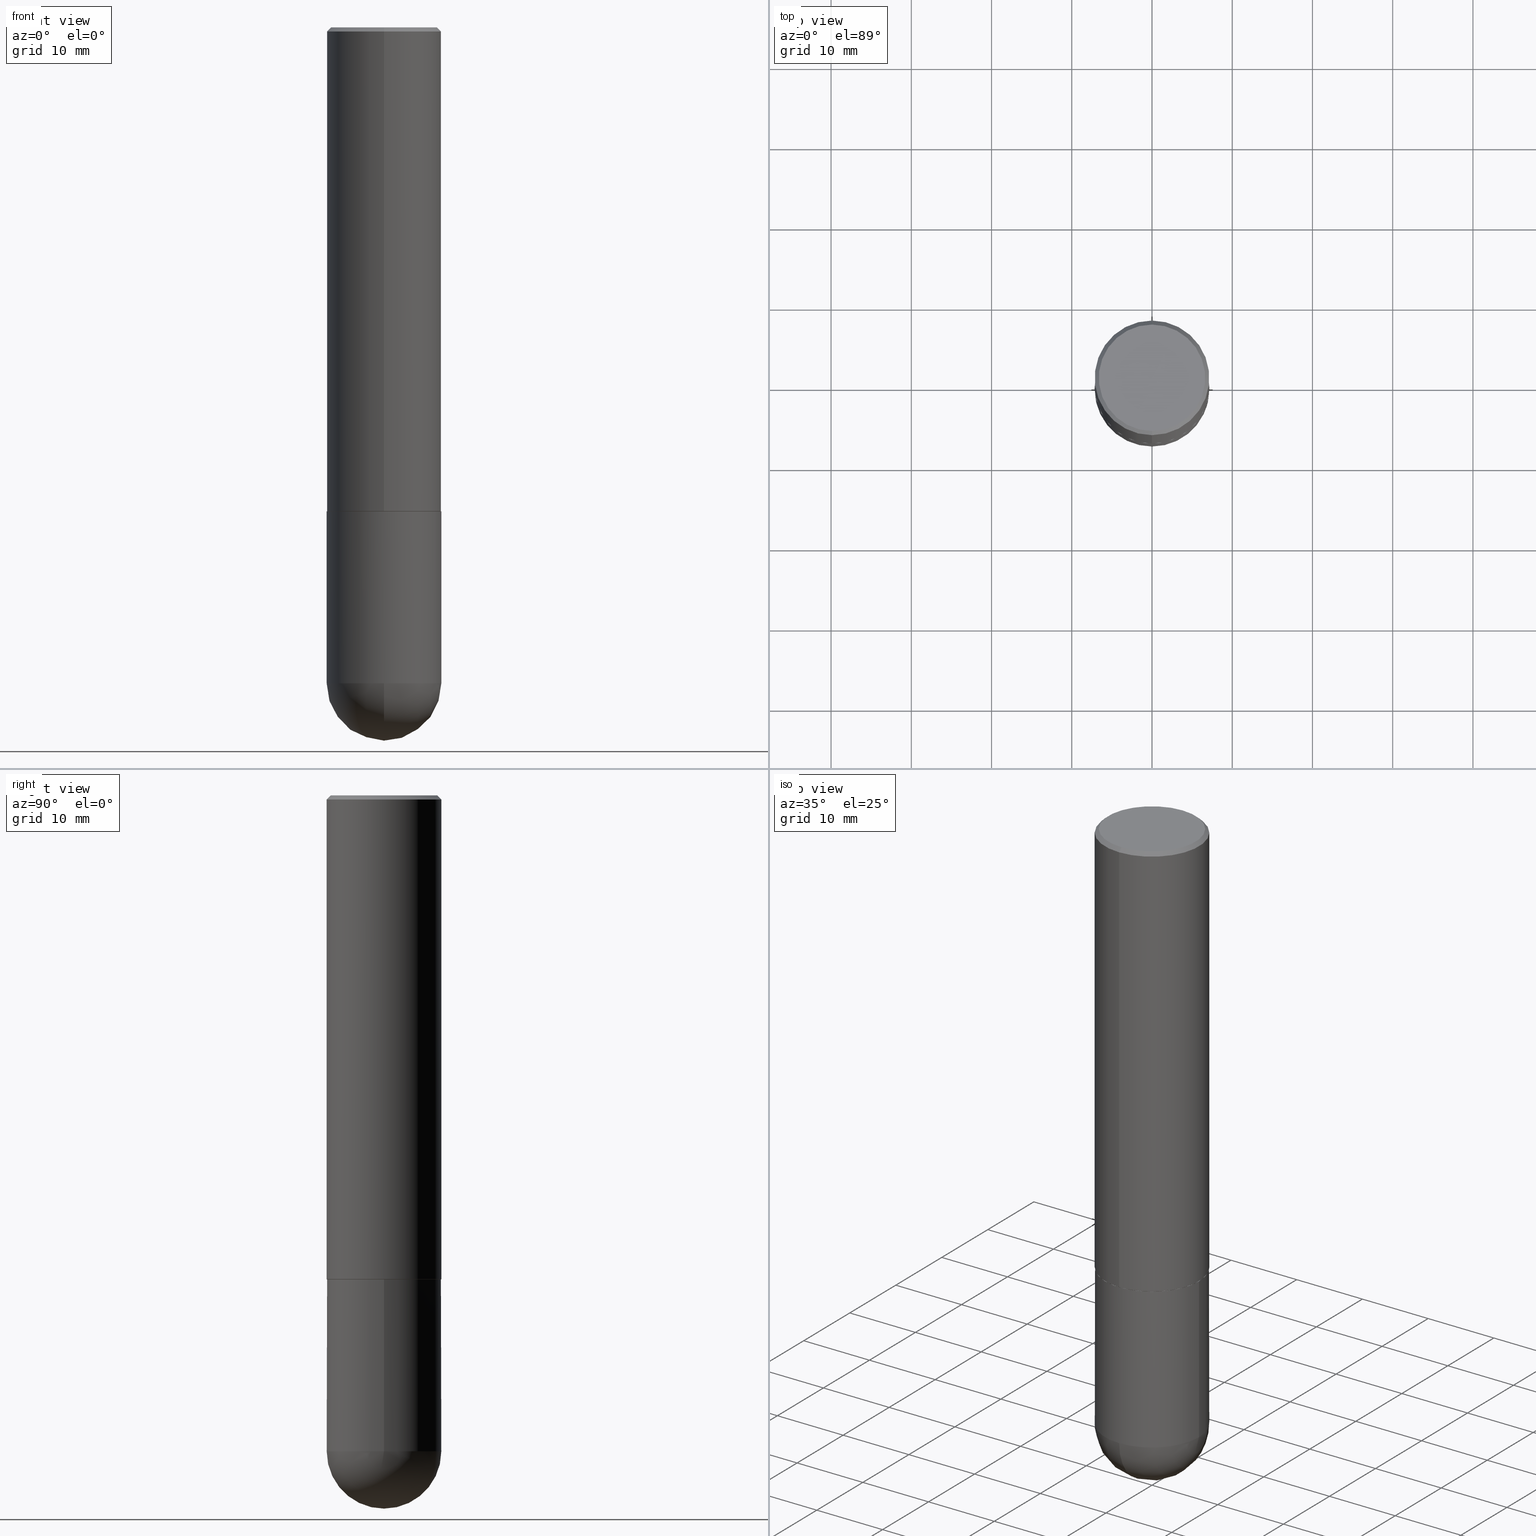
[diagram: canonical four-view strip — front | top / right | iso, engineering-drawing reading convention]
A machine part, canonical four-view strip (front | top / right | iso — engineering-drawing reading convention). The complete STEP part file that produces these views, byte-faithful:
ISO-10303-21;
HEADER;
FILE_DESCRIPTION (( 'STEP AP203' ),
    '1' );
FILE_NAME ('30593.STEP',
    '2024-02-21T16:41:23',
    ( '' ),
    ( '' ),
    'SwSTEP 2.0',
    'SolidWorks 2023',
    '' );
FILE_SCHEMA (( 'CONFIG_CONTROL_DESIGN' ));
ENDSEC;

DATA;
#1 = LINE ( 'NONE', #261, #167 ) ;
#2 = CIRCLE ( 'NONE', #116, 0.2612499999999999267 ) ;
#3 = VECTOR ( 'NONE', #8, 39.37007874015748143 ) ;
#4 = EDGE_LOOP ( 'NONE', ( #78, #129, #5, #263 ) ) ;
#5 = ORIENTED_EDGE ( 'NONE', *, *, #345, .T. ) ;
#6 = ADVANCED_FACE ( 'NONE', ( #288 ), #382, .T. ) ;
#7 = ORIENTED_EDGE ( 'NONE', *, *, #64, .F. ) ;
#8 = DIRECTION ( 'NONE',  ( -2.445561105913636168E-29, 3.491349160378560520E-15, 1.000000000000000000 ) ) ;
#9 = CARTESIAN_POINT ( 'NONE',  ( -1.929515061873242463E-15, -0.2812500000000000555, -0.01999999999999908101 ) ) ;
#10 = EDGE_LOOP ( 'NONE', ( #230, #351, #104, #346 ) ) ;
#11 = COORDINATED_UNIVERSAL_TIME_OFFSET ( 5, 0, .BEHIND. ) ;
#12 = APPROVAL_STATUS ( 'not_yet_approved' ) ;
#13 = VECTOR ( 'NONE', #126, 39.37007874015748143 ) ;
#14 = ORIENTED_EDGE ( 'NONE', *, *, #325, .F. ) ;
#15 = LENGTH_MEASURE_WITH_UNIT ( LENGTH_MEASURE( 0.02539999999999999897 ), #74 );
#16 = VERTEX_POINT ( 'NONE', #9 ) ;
#17 = VERTEX_POINT ( 'NONE', #57 ) ;
#18 = PRODUCT_DEFINITION ( 'UNKNOWN', '', #59, #378 ) ;
#19 = AXIS2_PLACEMENT_3D ( 'NONE', #284, #155, #380 ) ;
#20 = VECTOR ( 'NONE', #40, 39.37007874015748143 ) ;
#21 = CALENDAR_DATE ( 2024, 21, 2 ) ;
#22 = APPROVAL_DATE_TIME ( #31, #245 ) ;
#23 = DIRECTION ( 'NONE',  ( -2.445561105913635888E-29, 3.491349160378560520E-15, 1.000000000000000000 ) ) ;
#24 = DIRECTION ( 'NONE',  ( -6.982962677686265922E-15, -1.000000000000000000, 3.899158599342391639E-15 ) ) ;
#25 = CARTESIAN_POINT ( 'NONE',  ( 1.824298999545536310E-15, 0.2612499999999999267, -8.929239277553832707E-16 ) ) ;
#26 = CIRCLE ( 'NONE', #281, 0.2812500000000003331 ) ;
#27 = AXIS2_PLACEMENT_3D ( 'NONE', #121, #207, #307 ) ;
#28 = DIRECTION ( 'NONE',  ( -2.445468806185136877E-29, 3.491481338843145188E-15, 1.000000000000000000 ) ) ;
#29 = UNCERTAINTY_MEASURE_WITH_UNIT (LENGTH_MEASURE( 1.000000000000000082E-05 ), #231, 'distance_accuracy_value', 'NONE');
#30 = DIRECTION ( 'NONE',  ( 5.024295867788490741E-15, 0.7071067811866103003, 0.7071067811864847341 ) ) ;
#31 = DATE_AND_TIME ( #368, #42 ) ;
#32 = FACE_OUTER_BOUND ( 'NONE', #237, .T. ) ;
#33 = AXIS2_PLACEMENT_3D ( 'NONE', #257, #37, #153 ) ;
#34 = CC_DESIGN_SECURITY_CLASSIFICATION ( #387, ( #59 ) ) ;
#35 = DIRECTION ( 'NONE',  ( -6.982962677686265133E-15, -1.000000000000000000, 3.885294924322504533E-15 ) ) ;
#36 =( NAMED_UNIT ( * ) SI_UNIT ( $, .STERADIAN. ) SOLID_ANGLE_UNIT ( ) );
#37 = DIRECTION ( 'NONE',  ( -2.445561105913635328E-29, 3.491349160378560520E-15, 1.000000000000000000 ) ) ;
#38 = CARTESIAN_POINT ( 'NONE',  ( 0.000000000000000000, 0.000000000000000000, 0.000000000000000000 ) ) ;
#39 = CC_DESIGN_PERSON_AND_ORGANIZATION_ASSIGNMENT ( #109, #232, ( #18 ) ) ;
#40 = DIRECTION ( 'NONE',  ( 4.937700262164542520E-15, 0.7071067811865443531, -0.7071067811865506814 ) ) ;
#41 = EDGE_CURVE ( 'NONE', #16, #138, #305, .T. ) ;
#42 = LOCAL_TIME ( 11, 41, 23.00000000000000000, #336 ) ;
#43 = CARTESIAN_POINT ( 'NONE',  ( -1.963958253099263301E-15, -0.2812500000000001110, 9.819419513564705654E-16 ) ) ;
#44 = DIRECTION ( 'NONE',  ( -6.982962677686266711E-15, -1.000000000000000000, 3.491349160378560520E-15 ) ) ;
#45 = ORIENTED_EDGE ( 'NONE', *, *, #260, .T. ) ;
#46 = DIRECTION ( 'NONE',  ( -2.445561105913635888E-29, 3.491349160378560520E-15, 1.000000000000000000 ) ) ;
#47 = PERSON_AND_ORGANIZATION ( #158, #362 ) ;
#48 = ORIENTED_EDGE ( 'NONE', *, *, #120, .F. ) ;
#49 = CALENDAR_DATE ( 2024, 21, 2 ) ;
#50 = CIRCLE ( 'NONE', #407, 0.2812500000000002220 ) ;
#51 = CONICAL_SURFACE ( 'NONE', #125, 0.2812500000000000000, 0.7853981633974472798 ) ;
#52 = EDGE_LOOP ( 'NONE', ( #199, #389, #393, #186 ) ) ;
#53 = DIRECTION ( 'NONE',  ( 6.982962677686265133E-15, 1.000000000000000000, 0.000000000000000000 ) ) ;
#54 = ADVANCED_FACE ( 'NONE', ( #364 ), #401, .T. ) ;
#55 = DIRECTION ( 'NONE',  ( 1.000000000000000000, -6.982962677686266711E-15, 4.876176775795935232E-29 ) ) ;
#56 = CIRCLE ( 'NONE', #103, 0.2812500000000000000 ) ;
#57 = CARTESIAN_POINT ( 'NONE',  ( 1.894128626322399609E-15, 0.2612499999999999267, -8.737328873618678649E-16 ) ) ;
#58 = DIRECTION ( 'NONE',  ( 2.445561105913635888E-29, -3.491349160378560520E-15, -1.000000000000000000 ) ) ;
#59 = PRODUCT_DEFINITION_FORMATION_WITH_SPECIFIED_SOURCE ( 'ANY', '', #239, .NOT_KNOWN. ) ;
#60 = DIRECTION ( 'NONE',  ( -2.445561105913635888E-29, 3.491349160378560520E-15, 1.000000000000000000 ) ) ;
#61 = VECTOR ( 'NONE', #28, 39.37007874015748143 ) ;
#62 = LINE ( 'NONE', #100, #395 ) ;
#63 = CALENDAR_DATE ( 2024, 21, 2 ) ;
#64 = EDGE_CURVE ( 'NONE', #138, #16, #369, .T. ) ;
#65 = ADVANCED_FACE ( 'NONE', ( #308 ), #373, .T. ) ;
#66 = ORIENTED_EDGE ( 'NONE', *, *, #68, .T. ) ;
#67 = PERSON_AND_ORGANIZATION_ROLE ( 'classification_officer' ) ;
#68 = EDGE_CURVE ( 'NONE', #291, #356, #86, .T. ) ;
#69 = DIRECTION ( 'NONE',  ( -6.982962677686265922E-15, -1.000000000000000000, 3.899158599342391639E-15 ) ) ;
#70 = ORIENTED_EDGE ( 'NONE', *, *, #366, .T. ) ;
#71 = CC_DESIGN_PERSON_AND_ORGANIZATION_ASSIGNMENT ( #102, #76, ( #59 ) ) ;
#72 = DIRECTION ( 'NONE',  ( 2.438088387897960049E-29, -3.491481338843145188E-15, -1.000000000000000000 ) ) ;
#73 = ORIENTED_EDGE ( 'NONE', *, *, #187, .T. ) ;
#74 =( LENGTH_UNIT ( ) NAMED_UNIT ( * ) SI_UNIT ( $, .METRE. ) );
#75 = ORIENTED_EDGE ( 'NONE', *, *, #159, .F. ) ;
#76 = PERSON_AND_ORGANIZATION_ROLE ( 'creator' ) ;
#77 = APPROVAL_STATUS ( 'not_yet_approved' ) ;
#78 = ORIENTED_EDGE ( 'NONE', *, *, #169, .F. ) ;
#79 = AXIS2_PLACEMENT_3D ( 'NONE', #114, #148, #55 ) ;
#80 = CC_DESIGN_APPROVAL ( #376, ( #387 ) ) ;
#81 = DIRECTION ( 'NONE',  ( 6.982962677686266711E-15, 1.000000000000000000, -3.490694658571002804E-15 ) ) ;
#82 = ORIENTED_EDGE ( 'NONE', *, *, #403, .T. ) ;
#83 = ADVANCED_FACE ( 'NONE', ( #206 ), #396, .T. ) ;
#84 = AXIS2_PLACEMENT_3D ( 'NONE', #332, #248, #24 ) ;
#85 = CIRCLE ( 'NONE', #150, 0.2812500000000003331 ) ;
#86 = LINE ( 'NONE', #335, #61 ) ;
#87 = PLANE ( 'NONE',  #241 ) ;
#88 = CARTESIAN_POINT ( 'NONE',  ( -9.386572393679780245E-46, 1.340052455293824301E-31, 3.838208078703090415E-17 ) ) ;
#89 = CARTESIAN_POINT ( 'NONE',  ( 7.540232941994521053E-29, -1.171238792754142562E-14, -3.218749999999999556 ) ) ;
#90 = APPROVAL_ROLE ( '' ) ;
#91 = ADVANCED_FACE ( 'NONE', ( #173 ), #313, .F. ) ;
#92 = DIRECTION ( 'NONE',  ( -2.445468806185136597E-29, 3.491481338843145583E-15, 1.000000000000000000 ) ) ;
#93 = DIRECTION ( 'NONE',  ( 1.000000000000000000, -6.982962677686268288E-15, 0.000000000000000000 ) ) ;
#94 = CIRCLE ( 'NONE', #287, 0.2812500000000000555 ) ;
#95 = ADVANCED_FACE ( 'NONE', ( #32 ), #338, .T. ) ;
#96 = ORIENTED_EDGE ( 'NONE', *, *, #366, .F. ) ;
#97 = ADVANCED_FACE ( 'NONE', ( #214 ), #340, .T. ) ;
#98 = CARTESIAN_POINT ( 'NONE',  ( 7.871352719908407300E-29, -1.123820555940137375E-14, -3.218749999999999556 ) ) ;
#99 = CARTESIAN_POINT ( 'NONE',  ( -0.2812500000000000000, -7.766835425251639371E-15, -2.374999999999999556 ) ) ;
#100 = CARTESIAN_POINT ( 'NONE',  ( -1.956975290421518122E-15, -0.2802500000000083258, -2.374999999999998668 ) ) ;
#101 = EDGE_CURVE ( 'NONE', #291, #226, #185, .T. ) ;
#102 = PERSON_AND_ORGANIZATION ( #158, #362 ) ;
#103 = AXIS2_PLACEMENT_3D ( 'NONE', #397, #191, #132 ) ;
#104 = ORIENTED_EDGE ( 'NONE', *, *, #41, .F. ) ;
#105 = DIRECTION ( 'NONE',  ( 1.000000000000000000, 0.000000000000000000, 0.000000000000000000 ) ) ;
#106 = ORIENTED_EDGE ( 'NONE', *, *, #310, .T. ) ;
#107 = VERTEX_POINT ( 'NONE', #279 ) ;
#108 = ORIENTED_EDGE ( 'NONE', *, *, #120, .T. ) ;
#109 = PERSON_AND_ORGANIZATION ( #158, #362 ) ;
#110 = CARTESIAN_POINT ( 'NONE',  ( 4.891122211827287681E-31, -6.982698320757142044E-17, -0.02000000000000006287 ) ) ;
#111 = ORIENTED_EDGE ( 'NONE', *, *, #260, .F. ) ;
#112 = ORIENTED_EDGE ( 'NONE', *, *, #219, .T. ) ;
#113 = EDGE_CURVE ( 'NONE', #192, #17, #2, .T. ) ;
#114 = CARTESIAN_POINT ( 'NONE',  ( 0.000000000000000000, 0.000000000000000000, 0.000000000000000000 ) ) ;
#115 = CARTESIAN_POINT ( 'NONE',  ( 5.808207626544884288E-29, -8.291954255899079954E-15, -2.374999999999999556 ) ) ;
#116 = AXIS2_PLACEMENT_3D ( 'NONE', #88, #404, #243 ) ;
#117 = DIRECTION ( 'NONE',  ( -6.982962677686265922E-15, -1.000000000000000000, 3.899158599342391639E-15 ) ) ;
#118 = DIRECTION ( 'NONE',  ( 1.000000000000000000, -6.982962677686268288E-15, 0.000000000000000000 ) ) ;
#119 = DIRECTION ( 'NONE',  ( 1.000000000000000000, -6.982962677686266711E-15, 4.876176775795935232E-29 ) ) ;
#120 = EDGE_CURVE ( 'NONE', #348, #156, #367, .T. ) ;
#121 = CARTESIAN_POINT ( 'NONE',  ( 5.807988414689698296E-29, -8.292268179752468540E-15, -2.374999999999999556 ) ) ;
#122 = DIRECTION ( 'NONE',  ( -1.000000000000000000, 6.982962677686265922E-15, -4.883557194083112901E-29 ) ) ;
#123 = DIRECTION ( 'NONE',  ( -2.445468806185136597E-29, 3.491481338843145583E-15, 1.000000000000000000 ) ) ;
#124 = DIRECTION ( 'NONE',  ( -2.445468806185136877E-29, 3.491481338843145188E-15, 1.000000000000000000 ) ) ;
#125 = AXIS2_PLACEMENT_3D ( 'NONE', #211, #58, #309 ) ;
#126 = DIRECTION ( 'NONE',  ( -2.445561105913636168E-29, 3.491349160378560520E-15, 1.000000000000000000 ) ) ;
#127 = MECHANICAL_CONTEXT ( 'NONE', #285, 'mechanical' ) ;
#128 = CARTESIAN_POINT ( 'NONE',  ( 1.998401444325282167E-15, 0.2812500000000001110, -9.819419513564705654E-16 ) ) ;
#129 = ORIENTED_EDGE ( 'NONE', *, *, #149, .F. ) ;
#130 = ORIENTED_EDGE ( 'NONE', *, *, #149, .T. ) ;
#131 = EDGE_CURVE ( 'NONE', #322, #156, #50, .T. ) ;
#132 = DIRECTION ( 'NONE',  ( 1.000000000000000000, -6.982962677686266711E-15, 0.000000000000000000 ) ) ;
#133 = EDGE_LOOP ( 'NONE', ( #381, #66, #342, #203, #82 ) ) ;
#134 = CIRCLE ( 'NONE', #277, 0.2812500000000000555 ) ;
#135 = CIRCLE ( 'NONE', #27, 0.2812500000000000000 ) ;
#136 = ORIENTED_EDGE ( 'NONE', *, *, #131, .F. ) ;
#137 = EDGE_LOOP ( 'NONE', ( #112, #108, #136, #14 ) ) ;
#138 = VERTEX_POINT ( 'NONE', #311 ) ;
#139 = PERSON_AND_ORGANIZATION ( #158, #362 ) ;
#140 = EDGE_LOOP ( 'NONE', ( #160, #45, #259, #75 ) ) ;
#141 = DIRECTION ( 'NONE',  ( -1.000000000000000000, 6.982962677686265922E-15, -4.876176775795935793E-29 ) ) ;
#142 = DATE_TIME_ROLE ( 'classification_date' ) ;
#143 = CC_DESIGN_DATE_AND_TIME_ASSIGNMENT ( #144, #359, ( #18 ) ) ;
#144 = DATE_AND_TIME ( #201, #198 ) ;
#145 = CIRCLE ( 'NONE', #400, 0.2812500000000000555 ) ;
#146 = DIRECTION ( 'NONE',  ( -2.445468806185136597E-29, 3.491481338843145583E-15, 1.000000000000000000 ) ) ;
#147 = DIRECTION ( 'NONE',  ( 2.445561105913635328E-29, -3.491349160378560520E-15, -1.000000000000000000 ) ) ;
#148 = DIRECTION ( 'NONE',  ( -2.445468806185136597E-29, 3.491481338843145583E-15, 1.000000000000000000 ) ) ;
#149 = EDGE_CURVE ( 'NONE', #17, #192, #235, .T. ) ;
#150 = AXIS2_PLACEMENT_3D ( 'NONE', #229, #270, #168 ) ;
#151 = CC_DESIGN_PERSON_AND_ORGANIZATION_ASSIGNMENT ( #184, #244, ( #239 ) ) ;
#152 = LINE ( 'NONE', #128, #13 ) ;
#153 = DIRECTION ( 'NONE',  ( -6.982962677686265922E-15, -1.000000000000000000, 3.491349160378560520E-15 ) ) ;
#154 = CARTESIAN_POINT ( 'NONE',  ( -0.2812500000000000555, -7.766835425251640949E-15, -3.218749999999999556 ) ) ;
#155 = DIRECTION ( 'NONE',  ( -2.445561105913635888E-29, 3.491349160378560520E-15, 1.000000000000000000 ) ) ;
#156 = VERTEX_POINT ( 'NONE', #411 ) ;
#157 = DIRECTION ( 'NONE',  ( -6.982962677686265133E-15, -1.000000000000000000, 3.885294924322504533E-15 ) ) ;
#158 = PERSON ( 'UNSPECIFIED', 'UNSPECIFIED', 'UNSPECIFIED', ('UNSPECIFIED'), ('UNSPECIFIED'), ('UNSPECIFIED') ) ;
#159 = EDGE_CURVE ( 'NONE', #165, #291, #134, .T. ) ;
#160 = ORIENTED_EDGE ( 'NONE', *, *, #187, .F. ) ;
#161 = APPROVAL_ROLE ( '' ) ;
#162 = CARTESIAN_POINT ( 'NONE',  ( 8.240046819675677659E-29, -1.267714545847805119E-14, -3.500000000000000000 ) ) ;
#163 = EDGE_LOOP ( 'NONE', ( #390, #204 ) ) ;
#164 = APPROVAL_STATUS ( 'not_yet_approved' ) ;
#165 = VERTEX_POINT ( 'NONE', #372 ) ;
#166 = CARTESIAN_POINT ( 'NONE',  ( 1.963958253099262907E-15, 0.2812499999999999445, -0.02000000000000104472 ) ) ;
#167 = VECTOR ( 'NONE', #124, 39.37007874015748143 ) ;
#168 = DIRECTION ( 'NONE',  ( -7.105427357601001859E-15, -1.000000000000000000, 0.000000000000000000 ) ) ;
#169 = EDGE_CURVE ( 'NONE', #192, #16, #370, .T. ) ;
#170 = DATE_AND_TIME ( #21, #209 ) ;
#171 = ORIENTED_EDGE ( 'NONE', *, *, #325, .T. ) ;
#172 = CARTESIAN_POINT ( 'NONE',  ( 1.963958253099320494E-15, 0.2812499999999917288, -2.375000000000000888 ) ) ;
#173 = FACE_OUTER_BOUND ( 'NONE', #189, .T. ) ;
#174 = APPROVAL_PERSON_ORGANIZATION ( #262, #299, #161 ) ;
#175 = EDGE_CURVE ( 'NONE', #348, #298, #225, .T. ) ;
#176 = DIRECTION ( 'NONE',  ( -1.000000000000000000, 6.982962677686265922E-15, -4.883557194083112901E-29 ) ) ;
#177 = FACE_OUTER_BOUND ( 'NONE', #140, .T. ) ;
#178 = AXIS2_PLACEMENT_3D ( 'NONE', #321, #46, #157 ) ;
#179 = SPHERICAL_SURFACE ( 'NONE', #212, 0.2812500000000003331 ) ;
#180 = ADVANCED_FACE ( 'NONE', ( #388 ), #246, .T. ) ;
#181 = EDGE_LOOP ( 'NONE', ( #130, #268 ) ) ;
#182 = COORDINATED_UNIVERSAL_TIME_OFFSET ( 5, 0, .BEHIND. ) ;
#183 = CARTESIAN_POINT ( 'NONE',  ( 7.871352719908407300E-29, -1.123820555940137375E-14, -3.218749999999999556 ) ) ;
#184 = PERSON_AND_ORGANIZATION ( #158, #362 ) ;
#185 = CIRCLE ( 'NONE', #352, 0.2812500000000000555 ) ;
#186 = ORIENTED_EDGE ( 'NONE', *, *, #345, .F. ) ;
#187 = EDGE_CURVE ( 'NONE', #391, #165, #26, .T. ) ;
#188 = CARTESIAN_POINT ( 'NONE',  ( 0.000000000000000000, 0.000000000000000000, 0.000000000000000000 ) ) ;
#189 = EDGE_LOOP ( 'NONE', ( #293, #220 ) ) ;
#190 = LINE ( 'NONE', #166, #20 ) ;
#191 = DIRECTION ( 'NONE',  ( -2.445468806185136597E-29, 3.491481338843145583E-15, 1.000000000000000000 ) ) ;
#192 = VERTEX_POINT ( 'NONE', #275 ) ;
#193 = APPLICATION_PROTOCOL_DEFINITION ( 'international standard', 'config_control_design', 1994, #329 ) ;
#194 = PLANE ( 'NONE',  #402 ) ;
#195 = DIRECTION ( 'NONE',  ( -2.445468806185136597E-29, 3.491481338843145583E-15, 1.000000000000000000 ) ) ;
#196 = VECTOR ( 'NONE', #289, 39.37007874015748143 ) ;
#197 = EDGE_LOOP ( 'NONE', ( #349, #70, #320, #7 ) ) ;
#198 = LOCAL_TIME ( 11, 41, 23.00000000000000000, #276 ) ;
#199 = ORIENTED_EDGE ( 'NONE', *, *, #113, .F. ) ;
#200 = APPROVAL_DATE_TIME ( #297, #376 ) ;
#201 = CALENDAR_DATE ( 2024, 21, 2 ) ;
#202 = CARTESIAN_POINT ( 'NONE',  ( 7.540232941994521053E-29, -1.171238792754142562E-14, -3.218749999999999556 ) ) ;
#203 = ORIENTED_EDGE ( 'NONE', *, *, #337, .F. ) ;
#204 = ORIENTED_EDGE ( 'NONE', *, *, #208, .T. ) ;
#205 = DIRECTION ( 'NONE',  ( -2.445561105913635888E-29, 3.491349160378560520E-15, 1.000000000000000000 ) ) ;
#206 = FACE_OUTER_BOUND ( 'NONE', #394, .T. ) ;
#207 = DIRECTION ( 'NONE',  ( -2.445468806185136597E-29, 3.491481338843145583E-15, 1.000000000000000000 ) ) ;
#208 = EDGE_CURVE ( 'NONE', #356, #107, #56, .T. ) ;
#209 = LOCAL_TIME ( 11, 41, 23.00000000000000000, #182 ) ;
#210 = DIRECTION ( 'NONE',  ( -6.982962677686266711E-15, -1.000000000000000000, 3.491349160378560520E-15 ) ) ;
#211 = CARTESIAN_POINT ( 'NONE',  ( 4.891122211827287681E-31, -6.982698320757142044E-17, -0.02000000000000006287 ) ) ;
#212 = AXIS2_PLACEMENT_3D ( 'NONE', #89, #176, #314 ) ;
#213 = CARTESIAN_POINT ( 'NONE',  ( 1.991296016967738351E-15, 0.2802499999999917280, -2.375000000000000888 ) ) ;
#214 = FACE_OUTER_BOUND ( 'NONE', #300, .T. ) ;
#215 = CARTESIAN_POINT ( 'NONE',  ( 5.808207626544884288E-29, -8.291954255899079954E-15, -2.374999999999999556 ) ) ;
#216 =( NAMED_UNIT ( * ) PLANE_ANGLE_UNIT ( ) SI_UNIT ( $, .RADIAN. ) );
#217 =( GEOMETRIC_REPRESENTATION_CONTEXT ( 3 ) GLOBAL_UNCERTAINTY_ASSIGNED_CONTEXT ( ( #29 ) ) GLOBAL_UNIT_ASSIGNED_CONTEXT ( ( #231, #216, #36 ) ) REPRESENTATION_CONTEXT ( 'NONE', 'WORKASPACE' ) );
#218 = CARTESIAN_POINT ( 'NONE',  ( -1.929515061873242463E-15, -0.2812500000000000555, -0.01999999999999908101 ) ) ;
#219 = EDGE_CURVE ( 'NONE', #298, #348, #266, .T. ) ;
#220 = ORIENTED_EDGE ( 'NONE', *, *, #175, .F. ) ;
#221 = MANIFOLD_SOLID_BREP ( 'Body-Move/Copy2[1]', #328 ) ;
#222 = CARTESIAN_POINT ( 'NONE',  ( 5.808207626544884288E-29, -8.291954255899079954E-15, -2.374999999999999556 ) ) ;
#223 = CC_DESIGN_DATE_AND_TIME_ASSIGNMENT ( #170, #142, ( #387 ) ) ;
#224 = DIMENSIONAL_EXPONENTS ( 1.000000000000000000, 0.000000000000000000, 0.000000000000000000, 0.000000000000000000, 0.000000000000000000, 0.000000000000000000, 0.000000000000000000 ) ;
#225 = CIRCLE ( 'NONE', #361, 0.2802499999999999991 ) ;
#226 = VERTEX_POINT ( 'NONE', #242 ) ;
#227 = AXIS2_PLACEMENT_3D ( 'NONE', #115, #330, #117 ) ;
#228 = VERTEX_POINT ( 'NONE', #333 ) ;
#229 = CARTESIAN_POINT ( 'NONE',  ( 7.540232941994521053E-29, -1.171238792754142562E-14, -3.218749999999999556 ) ) ;
#230 = ORIENTED_EDGE ( 'NONE', *, *, #131, .T. ) ;
#231 =( CONVERSION_BASED_UNIT ( 'INCH', #15 ) LENGTH_UNIT ( ) NAMED_UNIT ( #224 ) );
#232 = PERSON_AND_ORGANIZATION_ROLE ( 'creator' ) ;
#233 = ORIENTED_EDGE ( 'NONE', *, *, #175, .T. ) ;
#234 = PRODUCT_DEFINITION_SHAPE ( 'NONE', 'NONE',  #18 ) ;
#235 = CIRCLE ( 'NONE', #19, 0.2612499999999999267 ) ;
#236 = CIRCLE ( 'NONE', #178, 0.2812500000000002220 ) ;
#237 = EDGE_LOOP ( 'NONE', ( #111, #73, #319, #267 ) ) ;
#238 = SHAPE_DEFINITION_REPRESENTATION ( #234, #357 ) ;
#239 = PRODUCT ( '30593', '30593', '', ( #127 ) ) ;
#240 = ADVANCED_FACE ( 'NONE', ( #363 ), #87, .F. ) ;
#241 = AXIS2_PLACEMENT_3D ( 'NONE', #25, #147, #249 ) ;
#242 = CARTESIAN_POINT ( 'NONE',  ( -1.998401444325206042E-15, -0.2812500000000116573, -3.218749999999998668 ) ) ;
#243 = DIRECTION ( 'NONE',  ( -6.982962677686265133E-15, -1.000000000000000000, 3.491349160378560520E-15 ) ) ;
#244 = PERSON_AND_ORGANIZATION_ROLE ( 'design_owner' ) ;
#245 = APPROVAL ( #12, 'UNSPECIFIED' ) ;
#246 = CONICAL_SURFACE ( 'NONE', #253, 0.2812500000000000000, 0.7853981633974472798 ) ;
#247 = APPROVAL_PERSON_ORGANIZATION ( #303, #376, #398 ) ;
#248 = DIRECTION ( 'NONE',  ( -2.445561105913635888E-29, 3.491349160378560520E-15, 1.000000000000000000 ) ) ;
#249 = DIRECTION ( 'NONE',  ( 6.982962677686265922E-15, 1.000000000000000000, -3.491349160378560520E-15 ) ) ;
#250 = ADVANCED_FACE ( 'NONE', ( #405 ), #51, .T. ) ;
#251 = DIRECTION ( 'NONE',  ( 1.000000000000000000, -6.982962677686268288E-15, 0.000000000000000000 ) ) ;
#252 = CARTESIAN_POINT ( 'NONE',  ( -1.956975290421518122E-15, -0.2802500000000083258, -2.374999999999998668 ) ) ;
#253 = AXIS2_PLACEMENT_3D ( 'NONE', #110, #327, #81 ) ;
#254 = CONICAL_SURFACE ( 'NONE', #296, 0.2802499999999999991, 0.7853981633975336552 ) ;
#255 = DIRECTION ( 'NONE',  ( -2.445561105913635888E-29, 3.491349160378560520E-15, 1.000000000000000000 ) ) ;
#256 = SECURITY_CLASSIFICATION_LEVEL ( 'unclassified' ) ;
#257 = CARTESIAN_POINT ( 'NONE',  ( 5.808207626544884288E-29, -8.291954255899079954E-15, -2.374999999999999556 ) ) ;
#258 = EDGE_CURVE ( 'NONE', #107, #356, #135, .T. ) ;
#259 = ORIENTED_EDGE ( 'NONE', *, *, #101, .F. ) ;
#260 = EDGE_CURVE ( 'NONE', #391, #226, #85, .T. ) ;
#261 = CARTESIAN_POINT ( 'NONE',  ( 0.2812500000000000555, -1.963958253099262907E-15, 1.371424718192607012E-29 ) ) ;
#262 = PERSON_AND_ORGANIZATION ( #158, #362 ) ;
#263 = ORIENTED_EDGE ( 'NONE', *, *, #64, .T. ) ;
#264 = DIRECTION ( 'NONE',  ( -2.445468806185136597E-29, 3.491481338843145583E-15, 1.000000000000000000 ) ) ;
#265 = CLOSED_SHELL ( 'NONE', ( #339, #6, #250, #180, #65, #97, #91, #240 ) ) ;
#266 = CIRCLE ( 'NONE', #227, 0.2802499999999999991 ) ;
#267 = ORIENTED_EDGE ( 'NONE', *, *, #310, .F. ) ;
#268 = ORIENTED_EDGE ( 'NONE', *, *, #113, .T. ) ;
#269 = PERSON_AND_ORGANIZATION_ROLE ( 'design_supplier' ) ;
#270 = DIRECTION ( 'NONE',  ( -1.000000000000000000, 7.105427357601001070E-15, -4.926315508542082329E-29 ) ) ;
#271 = DIRECTION ( 'NONE',  ( -6.982962677686265922E-15, -1.000000000000000000, 3.899158599342391639E-15 ) ) ;
#272 = PRODUCT_RELATED_PRODUCT_CATEGORY ( 'detail', '', ( #239 ) ) ;
#273 = AXIS2_PLACEMENT_3D ( 'NONE', #371, #92, #119 ) ;
#274 = ADVANCED_FACE ( 'NONE', ( #347 ), #194, .F. ) ;
#275 = CARTESIAN_POINT ( 'NONE',  ( -1.860910081895527526E-15, -0.2612499999999999267, 9.504970489359294883E-16 ) ) ;
#276 = COORDINATED_UNIVERSAL_TIME_OFFSET ( 5, 0, .BEHIND. ) ;
#277 = AXIS2_PLACEMENT_3D ( 'NONE', #98, #123, #251 ) ;
#278 = CC_DESIGN_APPROVAL ( #245, ( #18 ) ) ;
#279 = CARTESIAN_POINT ( 'NONE',  ( 0.2812500000000000000, -1.025622643285173184E-14, -2.374999999999999556 ) ) ;
#280 = CARTESIAN_POINT ( 'NONE',  ( 5.805762065438970283E-29, -8.288462906738701557E-15, -2.373999999999999666 ) ) ;
#281 = AXIS2_PLACEMENT_3D ( 'NONE', #202, #326, #53 ) ;
#282 = EDGE_CURVE ( 'NONE', #156, #138, #152, .T. ) ;
#283 = DIRECTION ( 'NONE',  ( 1.000000000000000000, -6.982962677686268288E-15, 0.000000000000000000 ) ) ;
#284 = CARTESIAN_POINT ( 'NONE',  ( -9.386572393679780245E-46, 1.340052455293824301E-31, 3.838208078703090415E-17 ) ) ;
#285 = APPLICATION_CONTEXT ( 'configuration controlled 3d designs of mechanical parts and assemblies' ) ;
#286 = DIRECTION ( 'NONE',  ( -4.937700262164969294E-15, -0.7071067811866054154, 0.7071067811864896191 ) ) ;
#287 = AXIS2_PLACEMENT_3D ( 'NONE', #183, #264, #93 ) ;
#288 = FACE_OUTER_BOUND ( 'NONE', #10, .T. ) ;
#289 = DIRECTION ( 'NONE',  ( -4.851104656540958753E-15, -0.7071067811865492381, -0.7071067811865457964 ) ) ;
#290 = CC_DESIGN_PERSON_AND_ORGANIZATION_ASSIGNMENT ( #139, #269, ( #59 ) ) ;
#291 = VERTEX_POINT ( 'NONE', #154 ) ;
#292 = CARTESIAN_POINT ( 'NONE',  ( 1.994848730646540039E-15, 0.2802499999999917280, -2.375000000000000888 ) ) ;
#293 = ORIENTED_EDGE ( 'NONE', *, *, #219, .F. ) ;
#294 = CARTESIAN_POINT ( 'NONE',  ( 7.871352719908407300E-29, -1.123820555940137375E-14, -3.218749999999999556 ) ) ;
#295 = ORIENTED_EDGE ( 'NONE', *, *, #208, .F. ) ;
#296 = AXIS2_PLACEMENT_3D ( 'NONE', #222, #343, #69 ) ;
#297 = DATE_AND_TIME ( #49, #334 ) ;
#298 = VERTEX_POINT ( 'NONE', #252 ) ;
#299 = APPROVAL ( #164, 'UNSPECIFIED' ) ;
#300 = EDGE_LOOP ( 'NONE', ( #48, #233, #171, #96 ) ) ;
#301 = ORIENTED_EDGE ( 'NONE', *, *, #68, .F. ) ;
#302 = AXIS2_PLACEMENT_3D ( 'NONE', #409, #122, #304 ) ;
#303 = PERSON_AND_ORGANIZATION ( #158, #362 ) ;
#304 = DIRECTION ( 'NONE',  ( 6.982962677686265922E-15, 1.000000000000000000, -3.885294924322502955E-15 ) ) ;
#305 = CIRCLE ( 'NONE', #344, 0.2812500000000000000 ) ;
#306 = APPROVAL_PERSON_ORGANIZATION ( #47, #245, #90 ) ;
#307 = DIRECTION ( 'NONE',  ( 1.000000000000000000, -6.982962677686266711E-15, 0.000000000000000000 ) ) ;
#308 = FACE_OUTER_BOUND ( 'NONE', #197, .T. ) ;
#309 = DIRECTION ( 'NONE',  ( 6.982962677686266711E-15, 1.000000000000000000, -3.490694658571002804E-15 ) ) ;
#310 = EDGE_CURVE ( 'NONE', #226, #228, #94, .T. ) ;
#311 = CARTESIAN_POINT ( 'NONE',  ( 1.963958253099262907E-15, 0.2812499999999999445, -0.02000000000000104472 ) ) ;
#312 = VECTOR ( 'NONE', #30, 39.37007874015748143 ) ;
#313 = PLANE ( 'NONE',  #33 ) ;
#314 = DIRECTION ( 'NONE',  ( 6.982962677686265922E-15, 1.000000000000000000, -3.885294924322502955E-15 ) ) ;
#315 = DIRECTION ( 'NONE',  ( -6.982962677686266711E-15, -1.000000000000000000, 3.490694658571002804E-15 ) ) ;
#316 = DIRECTION ( 'NONE',  ( 0.000000000000000000, 0.000000000000000000, 1.000000000000000000 ) ) ;
#317 = AXIS2_PLACEMENT_3D ( 'NONE', #38, #255, #210 ) ;
#318 = DIRECTION ( 'NONE',  ( -2.445561105913635888E-29, 3.491349160378560520E-15, 1.000000000000000000 ) ) ;
#319 = ORIENTED_EDGE ( 'NONE', *, *, #403, .F. ) ;
#320 = ORIENTED_EDGE ( 'NONE', *, *, #384, .T. ) ;
#321 = CARTESIAN_POINT ( 'NONE',  ( 5.805762065438970283E-29, -8.288462906738701557E-15, -2.373999999999999666 ) ) ;
#322 = VERTEX_POINT ( 'NONE', #341 ) ;
#323 = AXIS2_PLACEMENT_3D ( 'NONE', #375, #412, #315 ) ;
#324 = LOCAL_TIME ( 11, 41, 23.00000000000000000, #11 ) ;
#325 = EDGE_CURVE ( 'NONE', #298, #322, #62, .T. ) ;
#326 = DIRECTION ( 'NONE',  ( 1.000000000000000000, -6.982962677686265922E-15, 4.883557194083112340E-29 ) ) ;
#327 = DIRECTION ( 'NONE',  ( 2.445561105913635888E-29, -3.491349160378560520E-15, -1.000000000000000000 ) ) ;
#328 = CLOSED_SHELL ( 'NONE', ( #54, #406, #95, #274, #83 ) ) ;
#329 = APPLICATION_CONTEXT ( 'configuration controlled 3d designs of mechanical parts and assemblies' ) ;
#330 = DIRECTION ( 'NONE',  ( -2.445561105913635888E-29, 3.491349160378560520E-15, 1.000000000000000000 ) ) ;
#331 = CC_DESIGN_PERSON_AND_ORGANIZATION_ASSIGNMENT ( #377, #67, ( #387 ) ) ;
#332 = CARTESIAN_POINT ( 'NONE',  ( 5.808207626544884288E-29, -8.291954255899079954E-15, -2.374999999999999556 ) ) ;
#333 = CARTESIAN_POINT ( 'NONE',  ( 0.2812500000000000555, -1.172919512267618602E-14, -3.218749999999999556 ) ) ;
#334 = LOCAL_TIME ( 11, 41, 23.00000000000000000, #392 ) ;
#335 = CARTESIAN_POINT ( 'NONE',  ( -0.2812500000000000555, 1.998401444325282167E-15, -1.383450494134192269E-29 ) ) ;
#336 = COORDINATED_UNIVERSAL_TIME_OFFSET ( 5, 0, .BEHIND. ) ;
#337 = EDGE_CURVE ( 'NONE', #228, #107, #1, .T. ) ;
#338 = SPHERICAL_SURFACE ( 'NONE', #302, 0.2812500000000003331 ) ;
#339 = ADVANCED_FACE ( 'NONE', ( #374 ), #254, .T. ) ;
#340 = CONICAL_SURFACE ( 'NONE', #84, 0.2802499999999999991, 0.7853981633975336552 ) ;
#341 = CARTESIAN_POINT ( 'NONE',  ( -1.963958253099205714E-15, -0.2812500000000085487, -2.373999999999998334 ) ) ;
#342 = ORIENTED_EDGE ( 'NONE', *, *, #258, .F. ) ;
#343 = DIRECTION ( 'NONE',  ( -2.445561105913635888E-29, 3.491349160378560520E-15, 1.000000000000000000 ) ) ;
#344 = AXIS2_PLACEMENT_3D ( 'NONE', #358, #23, #365 ) ;
#345 = EDGE_CURVE ( 'NONE', #17, #138, #190, .T. ) ;
#346 = ORIENTED_EDGE ( 'NONE', *, *, #384, .F. ) ;
#347 = FACE_OUTER_BOUND ( 'NONE', #163, .T. ) ;
#348 = VERTEX_POINT ( 'NONE', #292 ) ;
#349 = ORIENTED_EDGE ( 'NONE', *, *, #282, .F. ) ;
#350 = LINE ( 'NONE', #43, #3 ) ;
#351 = ORIENTED_EDGE ( 'NONE', *, *, #282, .T. ) ;
#352 = AXIS2_PLACEMENT_3D ( 'NONE', #360, #146, #118 ) ;
#353 = MANIFOLD_SOLID_BREP ( 'Body-Move/Copy2[2]', #265 ) ;
#354 = CC_DESIGN_APPROVAL ( #299, ( #59 ) ) ;
#355 = ORIENTED_EDGE ( 'NONE', *, *, #337, .T. ) ;
#356 = VERTEX_POINT ( 'NONE', #99 ) ;
#357 = ADVANCED_BREP_SHAPE_REPRESENTATION ( '30593', ( #221, #353, #408 ), #217 ) ;
#358 = CARTESIAN_POINT ( 'NONE',  ( 4.891122211827287681E-31, -6.982698320757142044E-17, -0.02000000000000006287 ) ) ;
#359 = DATE_TIME_ROLE ( 'creation_date' ) ;
#360 = CARTESIAN_POINT ( 'NONE',  ( 7.871352719908407300E-29, -1.123820555940137375E-14, -3.218749999999999556 ) ) ;
#361 = AXIS2_PLACEMENT_3D ( 'NONE', #215, #205, #271 ) ;
#362 = ORGANIZATION ( 'UNSPECIFIED', 'UNSPECIFIED', '' ) ;
#363 = FACE_OUTER_BOUND ( 'NONE', #181, .T. ) ;
#364 = FACE_OUTER_BOUND ( 'NONE', #133, .T. ) ;
#365 = DIRECTION ( 'NONE',  ( -6.982962677686266711E-15, -1.000000000000000000, 3.490694658571002804E-15 ) ) ;
#366 = EDGE_CURVE ( 'NONE', #156, #322, #236, .T. ) ;
#367 = LINE ( 'NONE', #213, #312 ) ;
#368 = CALENDAR_DATE ( 2024, 21, 2 ) ;
#369 = CIRCLE ( 'NONE', #323, 0.2812500000000000000 ) ;
#370 = LINE ( 'NONE', #218, #196 ) ;
#371 = CARTESIAN_POINT ( 'NONE',  ( 0.000000000000000000, 0.000000000000000000, 0.000000000000000000 ) ) ;
#372 = CARTESIAN_POINT ( 'NONE',  ( 1.963958253099340610E-15, 0.2812499999999886757, -3.218750000000000888 ) ) ;
#373 = CYLINDRICAL_SURFACE ( 'NONE', #317, 0.2812500000000001110 ) ;
#374 = FACE_OUTER_BOUND ( 'NONE', #137, .T. ) ;
#375 = CARTESIAN_POINT ( 'NONE',  ( 4.891122211827287681E-31, -6.982698320757142044E-17, -0.02000000000000006287 ) ) ;
#376 = APPROVAL ( #77, 'UNSPECIFIED' ) ;
#377 = PERSON_AND_ORGANIZATION ( #158, #362 ) ;
#378 = DESIGN_CONTEXT ( 'detailed design', #329, 'design' ) ;
#379 = DATE_AND_TIME ( #63, #324 ) ;
#380 = DIRECTION ( 'NONE',  ( -6.982962677686265133E-15, -1.000000000000000000, 3.491349160378560520E-15 ) ) ;
#381 = ORIENTED_EDGE ( 'NONE', *, *, #159, .T. ) ;
#382 = CYLINDRICAL_SURFACE ( 'NONE', #399, 0.2812500000000001110 ) ;
#383 = APPROVAL_DATE_TIME ( #379, #299 ) ;
#384 = EDGE_CURVE ( 'NONE', #322, #16, #350, .T. ) ;
#385 = ORIENTED_EDGE ( 'NONE', *, *, #101, .T. ) ;
#386 = CARTESIAN_POINT ( 'NONE',  ( 0.000000000000000000, 0.000000000000000000, 0.000000000000000000 ) ) ;
#387 = SECURITY_CLASSIFICATION ( '', '', #256 ) ;
#388 = FACE_OUTER_BOUND ( 'NONE', #4, .T. ) ;
#389 = ORIENTED_EDGE ( 'NONE', *, *, #169, .T. ) ;
#390 = ORIENTED_EDGE ( 'NONE', *, *, #258, .T. ) ;
#391 = VERTEX_POINT ( 'NONE', #162 ) ;
#392 = COORDINATED_UNIVERSAL_TIME_OFFSET ( 5, 0, .BEHIND. ) ;
#393 = ORIENTED_EDGE ( 'NONE', *, *, #41, .T. ) ;
#394 = EDGE_LOOP ( 'NONE', ( #301, #385, #106, #355, #295 ) ) ;
#395 = VECTOR ( 'NONE', #286, 39.37007874015748143 ) ;
#396 = CYLINDRICAL_SURFACE ( 'NONE', #79, 0.2812500000000000555 ) ;
#397 = CARTESIAN_POINT ( 'NONE',  ( 5.807988414689698296E-29, -8.292268179752468540E-15, -2.374999999999999556 ) ) ;
#398 = APPROVAL_ROLE ( '' ) ;
#399 = AXIS2_PLACEMENT_3D ( 'NONE', #188, #318, #44 ) ;
#400 = AXIS2_PLACEMENT_3D ( 'NONE', #294, #195, #283 ) ;
#401 = CYLINDRICAL_SURFACE ( 'NONE', #273, 0.2812500000000000555 ) ;
#402 = AXIS2_PLACEMENT_3D ( 'NONE', #172, #72, #141 ) ;
#403 = EDGE_CURVE ( 'NONE', #228, #165, #145, .T. ) ;
#404 = DIRECTION ( 'NONE',  ( -2.445561105913635888E-29, 3.491349160378560520E-15, 1.000000000000000000 ) ) ;
#405 = FACE_OUTER_BOUND ( 'NONE', #52, .T. ) ;
#406 = ADVANCED_FACE ( 'NONE', ( #177 ), #179, .T. ) ;
#407 = AXIS2_PLACEMENT_3D ( 'NONE', #280, #60, #35 ) ;
#408 = AXIS2_PLACEMENT_3D ( 'NONE', #386, #316, #105 ) ;
#409 = CARTESIAN_POINT ( 'NONE',  ( 7.540232941994521053E-29, -1.171238792754142562E-14, -3.218749999999999556 ) ) ;
#410 = APPLICATION_PROTOCOL_DEFINITION ( 'international standard', 'config_control_design', 1994, #285 ) ;
#411 = CARTESIAN_POINT ( 'NONE',  ( 1.998401444325312144E-15, 0.2812499999999919509, -2.374000000000000554 ) ) ;
#412 = DIRECTION ( 'NONE',  ( -2.445561105913635888E-29, 3.491349160378560520E-15, 1.000000000000000000 ) ) ;
ENDSEC;
END-ISO-10303-21;
